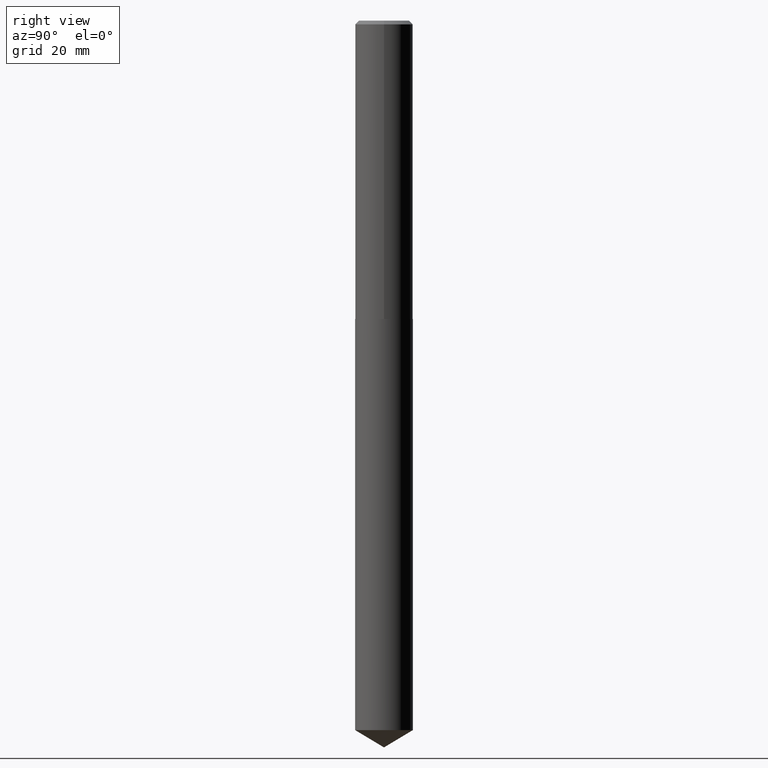
[diagram: clean part render]
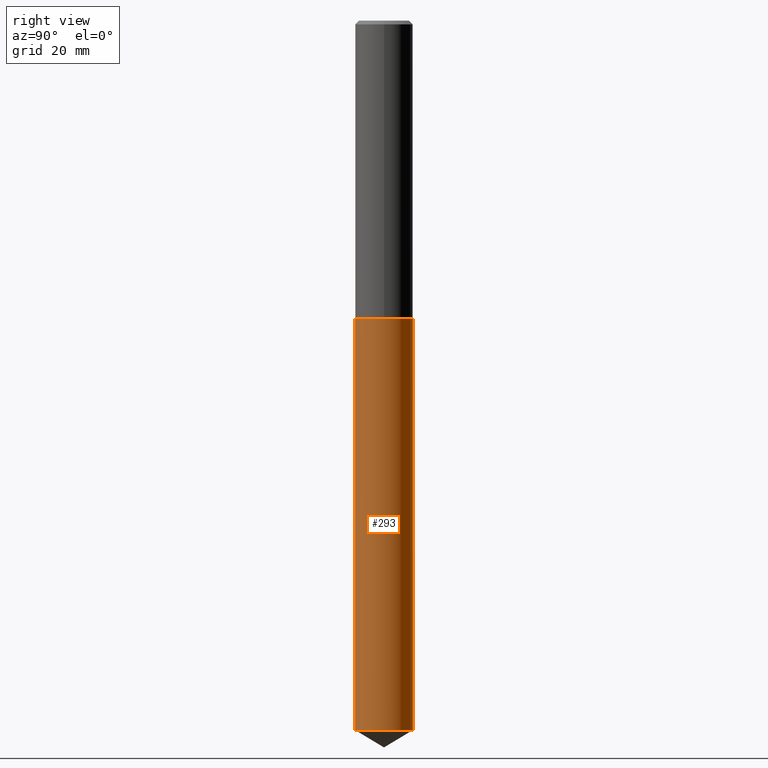
[diagram: same view with one face highlighted and labeled with its STEP entity id]
A machine part, right view. The second image highlights one B-rep face of the part: STEP entity #293.
In plain terms, the highlighted cylindrical surface (edge-blend (fillet) strip) has radius 5.9995 mm, axis along (-0, 0, 1).
Its self-contained STEP definition (entity closure, byte-faithful):
#13 = VECTOR ( 'NONE', #186, 39.37007874015748143 ) ;
#21 = EDGE_CURVE ( 'NONE', #264, #336, #67, .T. ) ;
#28 = AXIS2_PLACEMENT_3D ( 'NONE', #156, #129, #29 ) ;
#29 = DIRECTION ( 'NONE',  ( -6.982962677686265922E-15, -1.000000000000000000, 3.469747663417777397E-15 ) ) ;
#39 = CIRCLE ( 'NONE', #277, 0.2361999999999999933 ) ;
#58 = DIRECTION ( 'NONE',  ( -2.445258590381302040E-29, 3.491782379838977394E-15, 1.000000000000000000 ) ) ;
#64 = LINE ( 'NONE', #345, #85 ) ;
#67 = LINE ( 'NONE', #246, #13 ) ;
#79 = ORIENTED_EDGE ( 'NONE', *, *, #355, .F. ) ;
#85 = VECTOR ( 'NONE', #58, 39.37007874015748143 ) ;
#90 = DIRECTION ( 'NONE',  ( -6.982962677686265922E-15, -1.000000000000000000, 4.626330217890369336E-15 ) ) ;
#91 = ORIENTED_EDGE ( 'NONE', *, *, #231, .F. ) ;
#93 = CIRCLE ( 'NONE', #278, 0.2361999999999999933 ) ;
#99 = CARTESIAN_POINT ( 'NONE',  ( 1.678301941865498784E-15, 0.2361999999999914723, -2.440900000000000070 ) ) ;
#123 = FACE_OUTER_BOUND ( 'NONE', #275, .T. ) ;
#125 = CYLINDRICAL_SURFACE ( 'NONE', #28, 0.2361999999999999933 ) ;
#129 = DIRECTION ( 'NONE',  ( -2.445258590381302040E-29, 3.491782379838977394E-15, 1.000000000000000000 ) ) ;
#153 = CARTESIAN_POINT ( 'NONE',  ( -1.649375784469436177E-15, -0.2362000000000085420, -2.440899999999998293 ) ) ;
#156 = CARTESIAN_POINT ( 'NONE',  ( 5.969144809017297917E-29, -8.522356799982231388E-15, -2.440899999999999181 ) ) ;
#186 = DIRECTION ( 'NONE',  ( -2.445258590381302040E-29, 3.491782379838977394E-15, 1.000000000000000000 ) ) ;
#222 = CARTESIAN_POINT ( 'NONE',  ( 5.969144809017297917E-29, -8.522356799982231388E-15, -2.440899999999999181 ) ) ;
#231 = EDGE_CURVE ( 'NONE', #372, #292, #64, .T. ) ;
#246 = CARTESIAN_POINT ( 'NONE',  ( 1.678301941865416150E-15, 0.2361999999999914723, -2.440900000000000070 ) ) ;
#264 = VERTEX_POINT ( 'NONE', #270 ) ;
#270 = CARTESIAN_POINT ( 'NONE',  ( 1.678301941865498389E-15, 0.2361999999999797595, -5.802976721785690906 ) ) ;
#275 = EDGE_LOOP ( 'NONE', ( #331, #300, #79, #91 ) ) ;
#276 = EDGE_CURVE ( 'NONE', #372, #264, #39, .T. ) ;
#277 = AXIS2_PLACEMENT_3D ( 'NONE', #382, #352, #90 ) ;
#278 = AXIS2_PLACEMENT_3D ( 'NONE', #222, #285, #366 ) ;
#285 = DIRECTION ( 'NONE',  ( -2.445258590381302040E-29, 3.491782379838977394E-15, 1.000000000000000000 ) ) ;
#292 = VERTEX_POINT ( 'NONE', #153 ) ;
#293 = ADVANCED_FACE ( 'NONE', ( #123 ), #125, .T. ) ;
#299 = CARTESIAN_POINT ( 'NONE',  ( -1.649375784469354333E-15, -0.2362000000000202826, -5.802976721785689129 ) ) ;
#300 = ORIENTED_EDGE ( 'NONE', *, *, #21, .T. ) ;
#331 = ORIENTED_EDGE ( 'NONE', *, *, #276, .T. ) ;
#336 = VERTEX_POINT ( 'NONE', #99 ) ;
#345 = CARTESIAN_POINT ( 'NONE',  ( -1.649375784469436177E-15, -0.2362000000000085420, -2.440899999999998293 ) ) ;
#352 = DIRECTION ( 'NONE',  ( -2.445258590381302040E-29, 3.491782379838977394E-15, 1.000000000000000000 ) ) ;
#355 = EDGE_CURVE ( 'NONE', #292, #336, #93, .T. ) ;
#366 = DIRECTION ( 'NONE',  ( -6.982962677686265922E-15, -1.000000000000000000, 3.469747663417777397E-15 ) ) ;
#372 = VERTEX_POINT ( 'NONE', #299 ) ;
#382 = CARTESIAN_POINT ( 'NONE',  ( 1.419029179448476620E-28, -2.026199705678029935E-14, -5.802976721785690017 ) ) ;